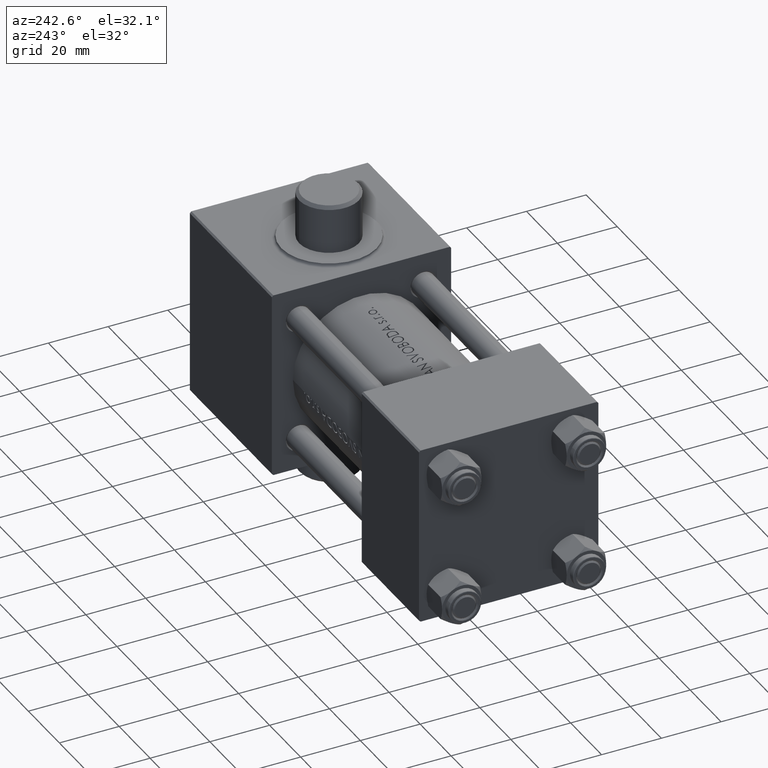
[diagram: clean part render]
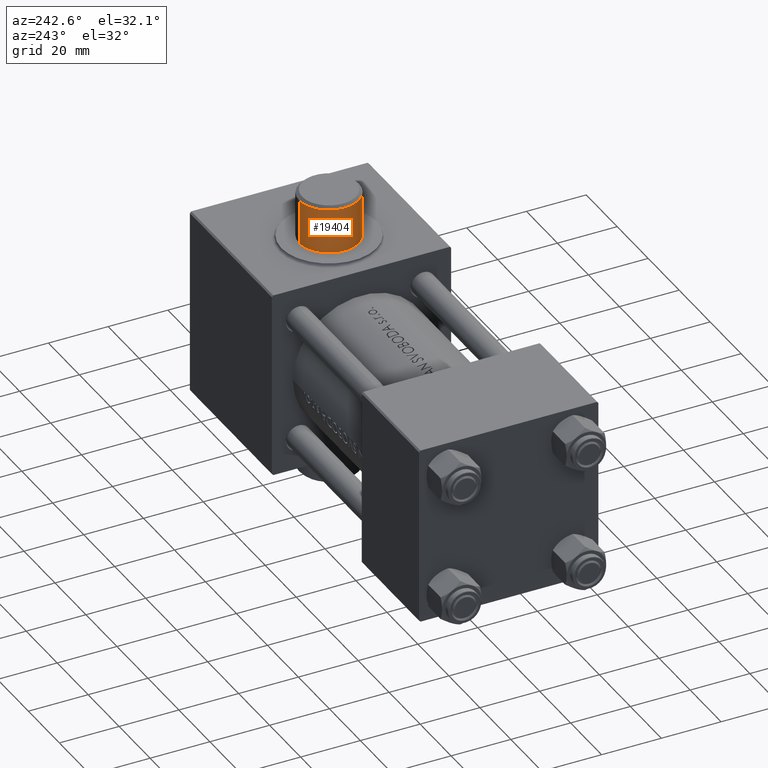
[diagram: same view with one face highlighted and labeled with its STEP entity id]
A machine part, auxiliary view. The second image highlights one B-rep face of the part: STEP entity #19404.
In plain terms, the highlighted cylindrical surface (edge-blend (fillet) strip) has radius 10 mm, axis along (0, 0, -1).
Its self-contained STEP definition (entity closure, byte-faithful):
#121 = CARTESIAN_POINT ( 'NONE',  ( 115.9999999999999858, -32.50000000000000711, 10.00000000000000888 ) ) ;
#2490 = VERTEX_POINT ( 'NONE', #121 ) ;
#3217 = CIRCLE ( 'NONE', #3981, 10.00000000000000888 ) ;
#3411 = CARTESIAN_POINT ( 'NONE',  ( 115.9999999999999858, -32.50000000000000711, -10.00000000000000888 ) ) ;
#3981 = AXIS2_PLACEMENT_3D ( 'NONE', #7572, #21815, #15267 ) ;
#5921 = EDGE_CURVE ( 'NONE', #42803, #11153, #14537, .T. ) ;
#6166 = VECTOR ( 'NONE', #6619, 1000.000000000000000 ) ;
#6619 = DIRECTION ( 'NONE',  ( -0.000000000000000000, 1.000000000000000000, 8.673617379884036705E-17 ) ) ;
#7572 = CARTESIAN_POINT ( 'NONE',  ( 115.9999999999999858, -47.50000000000005684, -1.387778780781450211E-15 ) ) ;
#8825 = ORIENTED_EDGE ( 'NONE', *, *, #41849, .T. ) ;
#8910 = EDGE_CURVE ( 'NONE', #42803, #26179, #3217, .T. ) ;
#11153 = VERTEX_POINT ( 'NONE', #3411 ) ;
#12537 = DIRECTION ( 'NONE',  ( -0.000000000000000000, 1.000000000000000000, 8.673617379884036705E-17 ) ) ;
#14537 = LINE ( 'NONE', #28802, #6166 ) ;
#14906 = CARTESIAN_POINT ( 'NONE',  ( 115.9999999999999858, -48.50000000000000711, -1.474514954580286425E-15 ) ) ;
#14916 = ORIENTED_EDGE ( 'NONE', *, *, #5921, .F. ) ;
#15267 = DIRECTION ( 'NONE',  ( 0.000000000000000000, 0.000000000000000000, -1.000000000000000000 ) ) ;
#18418 = FACE_OUTER_BOUND ( 'NONE', #25909, .T. ) ;
#19404 = ADVANCED_FACE ( 'NONE', ( #18418 ), #32683, .T. ) ;
#19801 = AXIS2_PLACEMENT_3D ( 'NONE', #14906, #12537, #45095 ) ;
#20019 = ORIENTED_EDGE ( 'NONE', *, *, #8910, .T. ) ;
#20159 = ORIENTED_EDGE ( 'NONE', *, *, #33252, .T. ) ;
#20667 = CARTESIAN_POINT ( 'NONE',  ( 115.9999999999999858, -48.50000000000000711, 10.00000000000000711 ) ) ;
#21815 = DIRECTION ( 'NONE',  ( 0.000000000000000000, 1.000000000000000000, 8.673617379884033007E-17 ) ) ;
#23808 = VECTOR ( 'NONE', #35206, 1000.000000000000000 ) ;
#23824 = CARTESIAN_POINT ( 'NONE',  ( 115.9999999999999858, -32.50000000000000711, -8.673617379884042868E-17 ) ) ;
#24711 = CARTESIAN_POINT ( 'NONE',  ( 115.9999999999999858, -47.50000000000005684, -10.00000000000001066 ) ) ;
#25909 = EDGE_LOOP ( 'NONE', ( #14916, #20019, #20159, #8825 ) ) ;
#26179 = VERTEX_POINT ( 'NONE', #30124 ) ;
#27797 = DIRECTION ( 'NONE',  ( 0.000000000000000000, 0.000000000000000000, -1.000000000000000000 ) ) ;
#28802 = CARTESIAN_POINT ( 'NONE',  ( 115.9999999999999858, -48.50000000000000711, -10.00000000000001066 ) ) ;
#30124 = CARTESIAN_POINT ( 'NONE',  ( 115.9999999999999858, -47.50000000000005684, 10.00000000000000711 ) ) ;
#32131 = LINE ( 'NONE', #20667, #23808 ) ;
#32683 = CYLINDRICAL_SURFACE ( 'NONE', #19801, 10.00000000000000888 ) ;
#33252 = EDGE_CURVE ( 'NONE', #26179, #2490, #32131, .T. ) ;
#34609 = DIRECTION ( 'NONE',  ( 0.000000000000000000, -1.000000000000000000, -8.673617379884036705E-17 ) ) ;
#35206 = DIRECTION ( 'NONE',  ( -0.000000000000000000, 1.000000000000000000, 8.673617379884036705E-17 ) ) ;
#40766 = CIRCLE ( 'NONE', #43783, 10.00000000000000888 ) ;
#41849 = EDGE_CURVE ( 'NONE', #2490, #11153, #40766, .T. ) ;
#42803 = VERTEX_POINT ( 'NONE', #24711 ) ;
#43783 = AXIS2_PLACEMENT_3D ( 'NONE', #23824, #34609, #27797 ) ;
#45095 = DIRECTION ( 'NONE',  ( 0.000000000000000000, 0.000000000000000000, 1.000000000000000000 ) ) ;